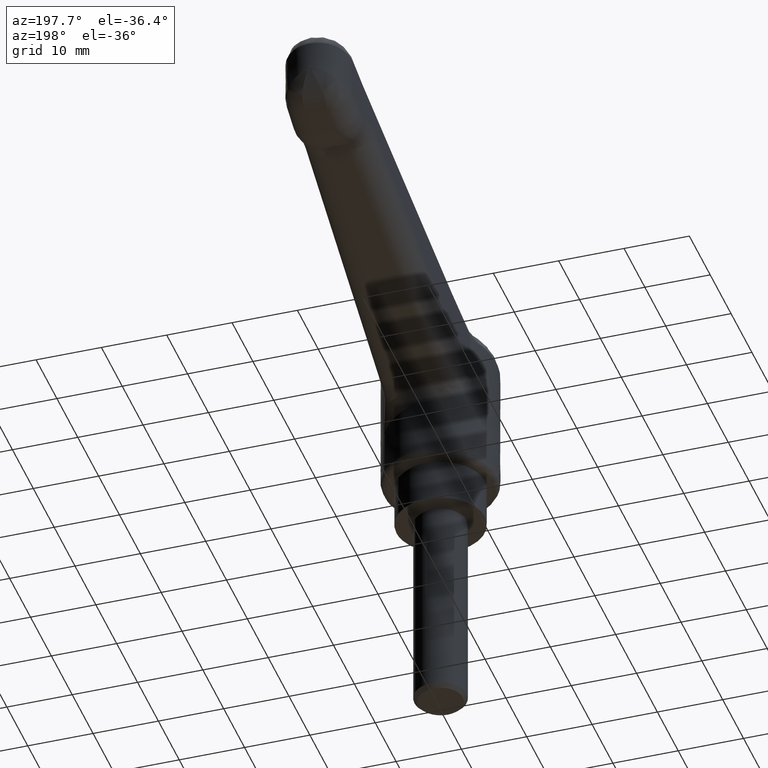
[diagram: clean part render]
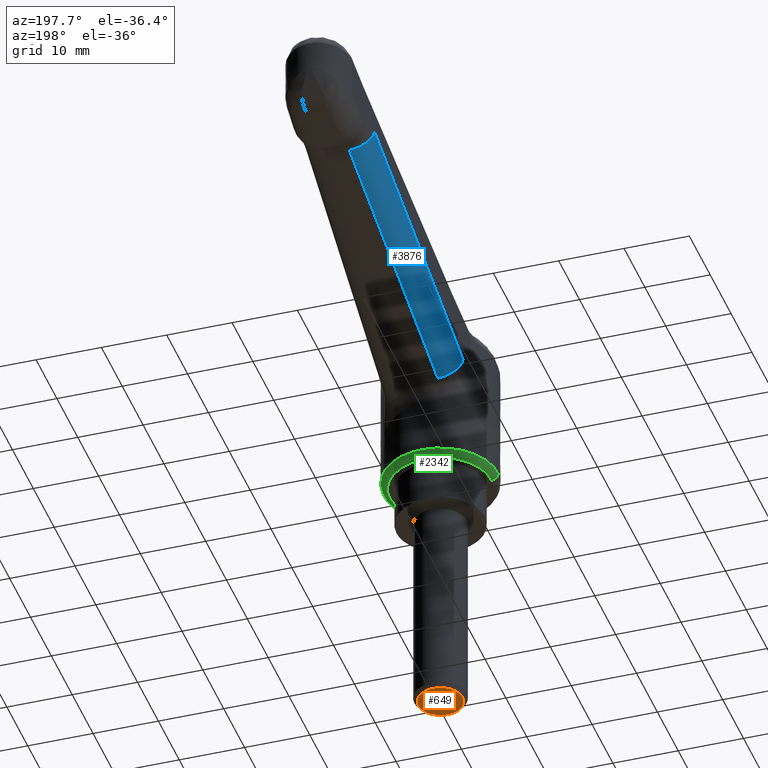
[diagram: same view with three faces highlighted in distinct colors, each labeled with its STEP entity id]
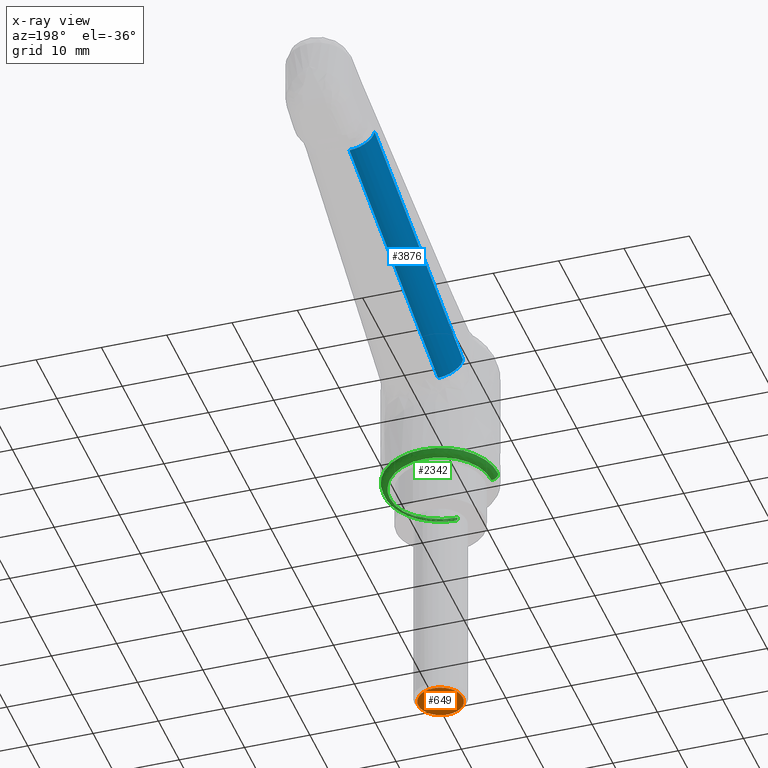
[diagram: x-ray of the same camera — body ghosted, the three highlighted faces saturated]
A machine part, auxiliary view with three faces highlighted in distinct colors.
The next image is the same camera in x-ray (body ghosted, the three faces saturated) — at least one of them is partly hidden behind the body in this view.
Their STEP definitions:

[orange] entity #649 — the highlighted face is a freeform B-spline surface patch.
#66=CARTESIAN_POINT('',(0.000001075447885,3.399999999999830,-32.0));
#67=VERTEX_POINT('',#66);
#68=CARTESIAN_POINT('',(2.383091781248194,2.425051814729273,-31.999999865589508));
#69=VERTEX_POINT('',#68);
#70=CARTESIAN_POINT('',(0.000001075447885,3.399999999999830,-32.0));
#71=CARTESIAN_POINT('',(0.206303826856431,3.400013539183006,-31.999999988364120));
#72=CARTESIAN_POINT('',(0.660166526704728,3.358592559476870,-31.999999962765539));
#73=CARTESIAN_POINT('',(1.309574584859677,3.163938275097377,-31.999999926137779));
#74=CARTESIAN_POINT('',(1.904564422289869,2.840730558385171,-31.999999892579272));
#75=CARTESIAN_POINT('',(2.235959255442568,2.569665688675639,-31.999999873888061));
#76=CARTESIAN_POINT('',(2.383091781248194,2.425051814729273,-31.999999865589508));
#77=B_SPLINE_CURVE_WITH_KNOTS('',3,(#70,#71,#72,#73,#74,#75,#76),.UNSPECIFIED.,.F.,.U.,(4,1,1,1,4),(0.000000022593269,0.618912912627354,1.361596499092005,2.021785552334158,2.640698442399903),.UNSPECIFIED.);
#78=EDGE_CURVE('',#67,#69,#77,.T.);
#80=CARTESIAN_POINT('',(-3.400000000000000,0.0,-32.0));
#81=VERTEX_POINT('',#80);
#82=CARTESIAN_POINT('',(-3.400000000000000,0.0,-32.0));
#83=CARTESIAN_POINT('',(-3.400046823733863,0.250346116770908,-32.0));
#84=CARTESIAN_POINT('',(-3.345993373157045,0.737111803730182,-32.000000000000142));
#85=CARTESIAN_POINT('',(-3.131545144628676,1.373159363141625,-31.999999999999829));
#86=CARTESIAN_POINT('',(-2.798219377999171,1.970080177058137,-32.000000000000021));
#87=CARTESIAN_POINT('',(-2.371431778203731,2.471041884002328,-32.000000000000021));
#88=CARTESIAN_POINT('',(-1.740827639827387,2.957055804232345,-32.000000000000163));
#89=CARTESIAN_POINT('',(-0.959625070817384,3.309088472490944,-31.999999999999709));
#90=CARTESIAN_POINT('',(-0.319888569717992,3.400096934344931,-32.000000000000163));
#91=CARTESIAN_POINT('',(0.000001075447885,3.399999999999830,-32.0));
#92=B_SPLINE_CURVE_WITH_KNOTS('',3,(#82,#83,#84,#85,#86,#87,#88,#89,#90,#91),.UNSPECIFIED.,.F.,.U.,(4,1,1,1,1,1,1,4),(0.000000091855163,0.751031887031957,1.460361161981702,2.002785758395207,2.795535657027919,3.421399764828268,4.381086326206093,5.340741627925443),.UNSPECIFIED.);
#93=EDGE_CURVE('',#81,#67,#92,.T.);
#95=CARTESIAN_POINT('',(-0.000001075447866,-3.399999999999830,-32.0));
#96=VERTEX_POINT('',#95);
#97=CARTESIAN_POINT('',(-0.000001075447866,-3.399999999999830,-32.0));
#98=CARTESIAN_POINT('',(-0.403389914366705,-3.400308546093153,-32.000000000000050));
#99=CARTESIAN_POINT('',(-0.959492652385073,-3.299857364652929,-31.999999999999890));
#100=CARTESIAN_POINT('',(-1.645752914098247,-2.990446706902696,-32.000000000000163));
#101=CARTESIAN_POINT('',(-2.184058882485862,-2.640349191780342,-32.000000000000263));
#102=CARTESIAN_POINT('',(-2.686691935654293,-2.131544496714763,-31.999999999998462));
#103=CARTESIAN_POINT('',(-3.053171207885497,-1.536591387172654,-32.000000000002252));
#104=CARTESIAN_POINT('',(-3.323592752136132,-0.848317448150342,-31.999999999997421));
#105=CARTESIAN_POINT('',(-3.400133827268607,-0.333812448389348,-32.000000000001577));
#106=CARTESIAN_POINT('',(-3.400000000000000,0.0,-32.0));
#107=B_SPLINE_CURVE_WITH_KNOTS('',3,(#97,#98,#99,#100,#101,#102,#103,#104,#105,#106),.UNSPECIFIED.,.F.,.U.,(4,1,1,1,1,1,1,4),(0.000000092229667,1.210011025555104,1.668984857592990,2.253145351925685,3.129337563657504,3.796930821526474,4.339353491044482,5.340740415637450),.UNSPECIFIED.);
#108=EDGE_CURVE('',#96,#81,#107,.T.);
#110=CARTESIAN_POINT('',(2.425051239519137,-2.383091215990767,-32.000000134410527));
#111=VERTEX_POINT('',#110);
#112=CARTESIAN_POINT('',(2.425051239519137,-2.383091215990767,-32.000000134410527));
#113=CARTESIAN_POINT('',(2.257509441591803,-2.553625522750459,-32.000000125124330));
#114=CARTESIAN_POINT('',(1.864437061579501,-2.877127182307133,-32.000000103338117));
#115=CARTESIAN_POINT('',(1.054531645532145,-3.283824866944554,-32.000000058448279));
#116=CARTESIAN_POINT('',(0.393799933904376,-3.400306882563987,-32.000000021826807));
#117=CARTESIAN_POINT('',(-0.000001075447866,-3.399999999999830,-32.0));
#118=B_SPLINE_CURVE_WITH_KNOTS('',3,(#112,#113,#114,#115,#116,#117),.UNSPECIFIED.,.F.,.U.,(4,1,1,4),(0.000000025236118,0.717199688999989,1.518761499625413,2.700042588229450),.UNSPECIFIED.);
#119=EDGE_CURVE('',#111,#96,#118,.T.);
#221=CARTESIAN_POINT('',(3.400000000000000,0.0,-32.0));
#222=VERTEX_POINT('',#221);
#223=CARTESIAN_POINT('',(2.383091781248194,2.425051814729273,-31.999999865589508));
#224=CARTESIAN_POINT('',(2.623950531510048,2.188595266363423,-31.999999878695391));
#225=CARTESIAN_POINT('',(2.931539559237469,1.779479608940712,-31.999999901370970));
#226=CARTESIAN_POINT('',(3.301131312220472,0.956089441028039,-31.999999947007851));
#227=CARTESIAN_POINT('',(3.400319805573218,0.393814750879882,-31.999999978172610));
#228=CARTESIAN_POINT('',(3.400000000000000,0.0,-32.0));
#229=B_SPLINE_CURVE_WITH_KNOTS('',3,(#223,#224,#225,#226,#227,#228),.UNSPECIFIED.,.F.,.U.,(4,1,1,4),(0.000000025225811,1.012516110250977,1.518761074837841,2.700041832979168),.UNSPECIFIED.);
#230=EDGE_CURVE('',#69,#222,#229,.T.);
#255=CARTESIAN_POINT('',(3.400000000000000,0.0,-32.0));
#256=CARTESIAN_POINT('',(3.400037289903009,-0.233814047627751,-32.000000013187510));
#257=CARTESIAN_POINT('',(3.355830822953966,-0.660158141330641,-32.000000037234138));
#258=CARTESIAN_POINT('',(3.153742569910166,-1.334509752092476,-32.000000075268638));
#259=CARTESIAN_POINT('',(2.842946694442174,-1.906728825953407,-32.000000107543038));
#260=CARTESIAN_POINT('',(2.550367712191789,-2.255566001391975,-32.000000127217668));
#261=CARTESIAN_POINT('',(2.425051239519137,-2.383091215990767,-32.000000134410527));
#262=B_SPLINE_CURVE_WITH_KNOTS('',3,(#255,#256,#257,#258,#259,#260,#261),.UNSPECIFIED.,.F.,.U.,(4,1,1,1,4),(0.000000022583575,0.701436544938916,1.279102335144040,2.104308352629024,2.640699204687282),.UNSPECIFIED.);
#263=EDGE_CURVE('',#222,#111,#262,.T.);
#636=CARTESIAN_POINT('',(-3.739660114487350,-3.739660114487164,-32.0));
#637=CARTESIAN_POINT('',(3.739660175284088,-3.739660114487164,-32.0));
#638=CARTESIAN_POINT('',(-3.739660114487350,3.739660175283901,-32.0));
#639=CARTESIAN_POINT('',(3.739660175284088,3.739660175283901,-32.0));
#640=B_SPLINE_SURFACE_WITH_KNOTS('',1,1,((#636,#638),(#637,#639)),.UNSPECIFIED.,.F.,.F.,.U.,(2,2),(2,2),(0.0,7.479320289771438),(0.0,7.479320289771064),.UNSPECIFIED.);
#641=ORIENTED_EDGE('',*,*,#263,.T.);
#642=ORIENTED_EDGE('',*,*,#119,.T.);
#643=ORIENTED_EDGE('',*,*,#108,.T.);
#644=ORIENTED_EDGE('',*,*,#93,.T.);
#645=ORIENTED_EDGE('',*,*,#78,.T.);
#646=ORIENTED_EDGE('',*,*,#230,.T.);
#647=EDGE_LOOP('',(#641,#642,#643,#644,#645,#646));
#648=FACE_OUTER_BOUND('',#647,.T.);
#649=ADVANCED_FACE('',(#648),#640,.F.);

[blue] entity #3876 — the highlighted face is a freeform B-spline surface patch.
#3795=CARTESIAN_POINT('',(9.262958616653201,6.402179053604970,21.973302108330049));
#3796=VERTEX_POINT('',#3795);
#3797=CARTESIAN_POINT('',(10.359522173690999,2.903622422313820,18.684377667119900));
#3798=VERTEX_POINT('',#3797);
#3799=CARTESIAN_POINT('',(9.262958616653201,6.402179053604970,21.973302108330049));
#3800=CARTESIAN_POINT('',(9.355346612989955,6.399584853430302,21.719263238965869));
#3801=CARTESIAN_POINT('',(9.504592548239023,6.343848795697433,21.304813906165389));
#3802=CARTESIAN_POINT('',(9.721919332280047,6.131973604940946,20.690989891108369));
#3803=CARTESIAN_POINT('',(9.920742144680839,5.808080784146135,20.119163679415621));
#3804=CARTESIAN_POINT('',(10.091000705621409,5.350193073114724,19.615241031614421));
#3805=CARTESIAN_POINT('',(10.208198560858371,4.867257432246587,19.255124560028410));
#3806=CARTESIAN_POINT('',(10.285969740020461,4.409105756294705,19.005288247986350));
#3807=CARTESIAN_POINT('',(10.354967709921080,3.771122701298901,18.765362177045741));
#3808=CARTESIAN_POINT('',(10.368228761378500,3.244978476208861,18.687399501600851));
#3809=CARTESIAN_POINT('',(10.359522173690999,2.903622422313820,18.684377667119900));
#3810=B_SPLINE_CURVE_WITH_KNOTS('',3,(#3799,#3800,#3801,#3802,#3803,#3804,#3805,#3806,#3807,#3808,#3809),.UNSPECIFIED.,.F.,.U.,(4,1,1,1,1,1,1,1,4),(0.000000091887160,0.810976232770241,1.323177470309531,2.048798498082200,2.859763227086600,3.414647619242432,3.884166311991335,4.439051220912606,5.463445318235242),.UNSPECIFIED.);
#3811=EDGE_CURVE('',#3796,#3798,#3810,.T.);
#3832=CARTESIAN_POINT('',(8.246319324658852,6.429116084484139,21.737356402377628));
#3833=CARTESIAN_POINT('',(49.158520331568887,5.253794208285529,36.628169396621892));
#3834=CARTESIAN_POINT('',(9.566401671407956,6.529952389128280,18.118416373922493));
#3835=CARTESIAN_POINT('',(50.478602678318019,5.354630512929671,33.009229368166757));
#3836=CARTESIAN_POINT('',(9.376880845697839,2.687254104912545,18.335819329733521));
#3837=CARTESIAN_POINT('',(50.289081852607907,1.511932228713937,33.226632323977782));
#3845=(BOUNDED_SURFACE()B_SPLINE_SURFACE(1,2,((#3832,#3834,#3836),(#3833,#3835,#3837)),.UNSPECIFIED.,.F.,.F.,.U.)B_SPLINE_SURFACE_WITH_KNOTS((2,2),(3,3),(0.0,43.553712635917030),(0.0,6.196964391042118),.UNSPECIFIED.)GEOMETRIC_REPRESENTATION_ITEM()RATIONAL_B_SPLINE_SURFACE(((1.0,0.671051942573897,0.996179641709109),(1.0,0.671051942573897,0.996179641709109)))REPRESENTATION_ITEM('')SURFACE());
#3846=CARTESIAN_POINT('',(48.203780514961402,5.283490771678870,36.146592287265499));
#3847=VERTEX_POINT('',#3846);
#3848=CARTESIAN_POINT('',(49.300344071999113,1.784934140387715,32.857667846055499));
#3849=VERTEX_POINT('',#3848);
#3850=CARTESIAN_POINT('',(48.203780514961402,5.283490771678870,36.146592287265499));
#3851=CARTESIAN_POINT('',(48.281578578605732,5.281274652514453,35.932668798177140));
#3852=CARTESIAN_POINT('',(48.450359076743659,5.227662449799922,35.464716291939837));
#3853=CARTESIAN_POINT('',(48.695228196919523,4.983901374195933,34.772703545980868));
#3854=CARTESIAN_POINT('',(48.937980228365383,4.525531138743885,34.069568500596759));
#3855=CARTESIAN_POINT('',(49.113243033544002,3.943778955682896,33.542120255508081));
#3856=CARTESIAN_POINT('',(49.233420381849193,3.268961764501138,33.158672606290942));
#3857=CARTESIAN_POINT('',(49.299589595683599,2.581373142757413,32.922603150097707));
#3858=CARTESIAN_POINT('',(49.307214443761623,2.055163339735760,32.860120650953057));
#3859=CARTESIAN_POINT('',(49.300344071999113,1.784934140387715,32.857667846055499));
#3860=B_SPLINE_CURVE_WITH_KNOTS('',3,(#3850,#3851,#3852,#3853,#3854,#3855,#3856,#3857,#3858,#3859),.UNSPECIFIED.,.F.,.U.,(4,1,1,1,1,1,1,4),(0.000000091885286,0.682927301456331,1.493912572717990,2.304911344371337,3.286590424067347,3.884166311990745,4.652467412871816,5.463445318235228),.UNSPECIFIED.);
#3861=EDGE_CURVE('',#3847,#3849,#3860,.T.);
#3862=ORIENTED_EDGE('',*,*,#3861,.T.);
#3863=CARTESIAN_POINT('',(10.359522173690999,2.903622422313820,18.684377667119900));
#3864=CARTESIAN_POINT('',(49.300344071999113,1.784934140387715,32.857667846055499));
#3865=QUASI_UNIFORM_CURVE('',1,(#3863,#3864),.UNSPECIFIED.,.F.,.U.);
#3866=EDGE_CURVE('',#3798,#3849,#3865,.T.);
#3867=ORIENTED_EDGE('',*,*,#3866,.F.);
#3868=ORIENTED_EDGE('',*,*,#3811,.F.);
#3869=CARTESIAN_POINT('',(48.203780514961402,5.283490771678870,36.146592287265499));
#3870=CARTESIAN_POINT('',(9.262958616653201,6.402179053604970,21.973302108330049));
#3871=QUASI_UNIFORM_CURVE('',1,(#3869,#3870),.UNSPECIFIED.,.F.,.U.);
#3872=EDGE_CURVE('',#3847,#3796,#3871,.T.);
#3873=ORIENTED_EDGE('',*,*,#3872,.F.);
#3874=EDGE_LOOP('',(#3862,#3867,#3868,#3873));
#3875=FACE_OUTER_BOUND('',#3874,.T.);
#3876=ADVANCED_FACE('',(#3875),#3845,.T.);

[green] entity #2342 — the highlighted face is a freeform B-spline surface patch.
#2093=CARTESIAN_POINT('',(-6.354455691114207,-6.015263325047886,7.499999999990987));
#2094=VERTEX_POINT('',#2093);
#2100=CARTESIAN_POINT('',(0.109933996298031,-8.749309373685328,7.500000000000000));
#2101=VERTEX_POINT('',#2100);
#2102=CARTESIAN_POINT('',(-6.354455691114207,-6.015263325047886,7.499999999990987));
#2103=CARTESIAN_POINT('',(-5.940775256106184,-6.452393557032376,7.499999999991860));
#2104=CARTESIAN_POINT('',(-5.137462727302058,-7.142183512451950,7.499999999993228));
#2105=CARTESIAN_POINT('',(-3.899827545571847,-7.865785215738073,7.499999999995273));
#2106=CARTESIAN_POINT('',(-2.870205675295900,-8.285664109434878,7.499999999996613));
#2107=CARTESIAN_POINT('',(-1.565206357952180,-8.653036569670702,7.499999999998270));
#2108=CARTESIAN_POINT('',(-0.585906137480290,-8.758237108538777,7.499999999999337));
#2109=CARTESIAN_POINT('',(0.109933996298031,-8.749309373685328,7.500000000000000));
#2110=B_SPLINE_CURVE_WITH_KNOTS('',3,(#2102,#2103,#2104,#2105,#2106,#2107,#2108,#2109),.UNSPECIFIED.,.F.,.U.,(4,1,1,1,1,4),(0.000000014360532,1.805514733418356,3.159660966558195,4.288087376748910,5.134429979583878,7.222058597644534),.UNSPECIFIED.);
#2111=EDGE_CURVE('',#2094,#2101,#2110,.T.);
#2113=CARTESIAN_POINT('',(8.750000000000000,0.0,7.500000000000000));
#2114=VERTEX_POINT('',#2113);
#2115=CARTESIAN_POINT('',(0.109933996298031,-8.749309373685328,7.500000000000000));
#2116=CARTESIAN_POINT('',(0.713502699685498,-8.741816568859047,7.500000000000596));
#2117=CARTESIAN_POINT('',(1.848108169442426,-8.609424497078811,7.500000000001620));
#2118=CARTESIAN_POINT('',(3.273843166694617,-8.151413571225655,7.500000000002527));
#2119=CARTESIAN_POINT('',(4.546968111588072,-7.515918201171089,7.500000000003278));
#2120=CARTESIAN_POINT('',(5.507852220662898,-6.836897463484384,7.500000000003454));
#2121=CARTESIAN_POINT('',(6.491515920816188,-5.911028041647692,7.500000000003581));
#2122=CARTESIAN_POINT('',(7.271942079557135,-4.937269255770262,7.500000000003395));
#2123=CARTESIAN_POINT('',(7.986157861456062,-3.664271465957183,7.500000000002916));
#2124=CARTESIAN_POINT('',(8.577623689320149,-2.059258427616046,7.500000000001799));
#2125=CARTESIAN_POINT('',(8.750281108557328,-0.781174512628224,7.500000000000803));
#2126=CARTESIAN_POINT('',(8.750000000000000,0.0,7.500000000000000));
#2127=B_SPLINE_CURVE_WITH_KNOTS('',3,(#2115,#2116,#2117,#2118,#2119,#2120,#2121,#2122,#2123,#2124,#2125,#2126),.UNSPECIFIED.,.F.,.U.,(4,1,1,1,1,1,1,1,1,4),(0.000000018811168,1.810837017683202,3.408654265399543,4.473865182008096,6.071667991470310,6.923827640652861,8.521629102155725,9.799876811127172,11.291175329991640,13.634615158612659),.UNSPECIFIED.);
#2128=EDGE_CURVE('',#2101,#2114,#2127,.T.);
#2130=CARTESIAN_POINT('',(-0.219888335178215,8.747236656227642,7.499999999974310));
#2131=VERTEX_POINT('',#2130);
#2132=CARTESIAN_POINT('',(8.750000000000000,0.0,7.500000000000000));
#2133=CARTESIAN_POINT('',(8.750139552992700,0.654595048490041,7.500000000001409));
#2134=CARTESIAN_POINT('',(8.643366964557853,1.600024302511590,7.500000000002954));
#2135=CARTESIAN_POINT('',(8.243949959622190,3.019557576892507,7.500000000004024));
#2136=CARTESIAN_POINT('',(7.743884219852498,4.155881933917202,7.500000000004026));
#2137=CARTESIAN_POINT('',(7.028224888032801,5.256149704534440,7.500000000002810));
#2138=CARTESIAN_POINT('',(6.231959340118197,6.181271964205028,7.500000000000936));
#2139=CARTESIAN_POINT('',(5.425283880974514,6.893009811917645,7.499999999998374));
#2140=CARTESIAN_POINT('',(4.509725996341755,7.521219026905407,7.499999999995196));
#2141=CARTESIAN_POINT('',(3.333405698010183,8.142908380144776,7.499999999990746));
#2142=CARTESIAN_POINT('',(1.710402972766057,8.654271824796473,7.499999999983543));
#2143=CARTESIAN_POINT('',(0.416310882426686,8.763332938404670,7.499999999977663));
#2144=CARTESIAN_POINT('',(-0.219888335178215,8.747236656227642,7.499999999974310));
#2145=B_SPLINE_CURVE_WITH_KNOTS('',3,(#2132,#2133,#2134,#2135,#2136,#2137,#2138,#2139,#2140,#2141,#2142,#2143,#2144),.UNSPECIFIED.,.F.,.U.,(4,1,1,1,1,1,1,1,1,1,4),(0.000000052052329,1.963735858215712,2.836514529372355,4.418427647198580,5.673058418835646,6.764017130999041,8.073150404742467,8.891392337703458,10.091462174907260,12.055210623226261,13.964401957908260),.UNSPECIFIED.);
#2146=EDGE_CURVE('',#2114,#2131,#2145,.T.);
#2211=CARTESIAN_POINT('',(-8.747236656228873,-0.219888335129219,7.499999999982748));
#2212=VERTEX_POINT('',#2211);
#2218=CARTESIAN_POINT('',(-8.747236656228873,-0.219888335129219,7.499999999982748));
#2219=CARTESIAN_POINT('',(-8.736345928901706,-0.653928087473862,7.499999999983191));
#2220=CARTESIAN_POINT('',(-8.646428375147830,-1.553695448144906,7.499999999984209));
#2221=CARTESIAN_POINT('',(-8.250627340244799,-3.077929208720498,7.499999999986126));
#2222=CARTESIAN_POINT('',(-7.506703321630031,-4.622601768478766,7.499999999988467));
#2223=CARTESIAN_POINT('',(-6.744808066599187,-5.602971352257833,7.499999999990120));
#2224=CARTESIAN_POINT('',(-6.354455691114207,-6.015263325047886,7.499999999990987));
#2225=B_SPLINE_CURVE_WITH_KNOTS('',3,(#2218,#2219,#2220,#2221,#2222,#2223,#2224),.UNSPECIFIED.,.F.,.U.,(4,1,1,1,4),(6.557025E-009,1.302533802497732,2.705274645835866,4.709166462384086,6.412482208577240),.UNSPECIFIED.);
#2226=EDGE_CURVE('',#2212,#2094,#2225,.T.);
#2232=CARTESIAN_POINT('',(-0.219827176199926,8.744803732137127,7.569724188743202));
#2233=CARTESIAN_POINT('',(8.524976555937203,8.964630908337052,7.569724188743201));
#2234=CARTESIAN_POINT('',(8.744803732137127,0.219827176199926,7.569724188743202));
#2235=CARTESIAN_POINT('',(8.964630908337057,-8.524976555937199,7.569724188743201));
#2236=CARTESIAN_POINT('',(0.219827176199929,-8.744803732137127,7.569724188743202));
#2237=CARTESIAN_POINT('',(-8.524976555937199,-8.964630908337057,7.569724188743201));
#2238=CARTESIAN_POINT('',(-8.744803732137127,-0.219827176199929,7.569724188743202));
#2239=CARTESIAN_POINT('',(-0.221841929892496,8.824951354986556,6.422664216261232));
#2240=CARTESIAN_POINT('',(8.603109425094061,9.046793284879055,6.422664216261234));
#2241=CARTESIAN_POINT('',(8.824951354986556,0.221841929892497,6.422664216261232));
#2242=CARTESIAN_POINT('',(9.046793284879055,-8.603109425094061,6.422664216261234));
#2243=CARTESIAN_POINT('',(0.221841929892499,-8.824951354986556,6.422664216261232));
#2244=CARTESIAN_POINT('',(-8.603109425094058,-9.046793284879055,6.422664216261234));
#2245=CARTESIAN_POINT('',(-8.824951354986556,-0.221841929892500,6.422664216261232));
#2246=CARTESIAN_POINT('',(-0.193015450934672,7.678223706783986,6.502407655551716));
#2247=CARTESIAN_POINT('',(7.485208255849313,7.871239157718658,6.502407655551715));
#2248=CARTESIAN_POINT('',(7.678223706783986,0.193015450934672,6.502407655551716));
#2249=CARTESIAN_POINT('',(7.871239157718660,-7.485208255849311,6.502407655551715));
#2250=CARTESIAN_POINT('',(0.193015450934675,-7.678223706783986,6.502407655551716));
#2251=CARTESIAN_POINT('',(-7.485208255849310,-7.871239157718660,6.502407655551715));
#2252=CARTESIAN_POINT('',(-7.678223706783986,-0.193015450934675,6.502407655551716));
#2260=(BOUNDED_SURFACE()B_SPLINE_SURFACE(2,2,((#2232,#2239,#2246),(#2233,#2240,#2247),(#2234,#2241,#2248),(#2235,#2242,#2249),(#2236,#2243,#2250),(#2237,#2244,#2251),(#2238,#2245,#2252)),.UNSPECIFIED.,.F.,.F.,.U.)B_SPLINE_SURFACE_WITH_KNOTS((3,2,2,3),(3,3),(0.0,14.493442409002860,28.986884818005720,43.480327227008580),(0.0,1.822370436461373),.UNSPECIFIED.)GEOMETRIC_REPRESENTATION_ITEM()RATIONAL_B_SPLINE_SURFACE(((0.910892943119429,0.599412915015239,0.915966658337646),(0.644098577014720,0.423848936938071,0.647686235451331),(0.910892943119429,0.599412915015239,0.915966658337646),(0.644098577014720,0.423848936938071,0.647686235451331),(0.910892943119429,0.599412915015239,0.915966658337646),(0.644098577014720,0.423848936938071,0.647686235451331),(0.910892943119429,0.599412915015239,0.915966658337646)))REPRESENTATION_ITEM('')SURFACE());
#2261=ORIENTED_EDGE('',*,*,#2146,.F.);
#2262=ORIENTED_EDGE('',*,*,#2128,.F.);
#2263=ORIENTED_EDGE('',*,*,#2111,.F.);
#2264=ORIENTED_EDGE('',*,*,#2226,.F.);
#2265=CARTESIAN_POINT('',(-7.747552470139488,-0.194758239940481,6.500000000000050));
#2266=VERTEX_POINT('',#2265);
#2267=CARTESIAN_POINT('',(-8.747236656228873,-0.219888335129219,7.499999999982748));
#2268=CARTESIAN_POINT('',(-8.747420102637220,-0.219892946611291,7.360887761262642));
#2269=CARTESIAN_POINT('',(-8.696914648205700,-0.218623338774057,7.123784506843284));
#2270=CARTESIAN_POINT('',(-8.528808380926751,-0.214397477689797,6.858290146235549));
#2271=CARTESIAN_POINT('',(-8.317804301295727,-0.209093249934547,6.662168849784357));
#2272=CARTESIAN_POINT('',(-8.058349545326122,-0.202571067423898,6.531528993554269));
#2273=CARTESIAN_POINT('',(-7.845692572028954,-0.197225289171259,6.499972235305967));
#2274=CARTESIAN_POINT('',(-7.747552470139488,-0.194758239940481,6.500000000000050));
#2275=B_SPLINE_CURVE_WITH_KNOTS('',3,(#2267,#2268,#2269,#2270,#2271,#2272,#2273,#2274),.UNSPECIFIED.,.F.,.U.,(4,1,1,1,1,4),(0.000000166053219,0.417255018316904,0.711794422736940,0.932672427783144,1.276310344604634,1.570835743331263),.UNSPECIFIED.);
#2276=EDGE_CURVE('',#2212,#2266,#2275,.T.);
#2277=ORIENTED_EDGE('',*,*,#2276,.T.);
#2278=CARTESIAN_POINT('',(0.097373588528918,-7.749388258711587,6.500000000000100));
#2279=VERTEX_POINT('',#2278);
#2280=CARTESIAN_POINT('',(0.097373588528918,-7.749388258711587,6.500000000000100));
#2281=CARTESIAN_POINT('',(-0.279974574890711,-7.754136981652586,6.500000000000105));
#2282=CARTESIAN_POINT('',(-1.129808237428060,-7.702705237387351,6.500000000000086));
#2283=CARTESIAN_POINT('',(-2.268850865567742,-7.442210738594850,6.500000000000111));
#2284=CARTESIAN_POINT('',(-3.323442905072267,-7.024620671896692,6.500000000000052));
#2285=CARTESIAN_POINT('',(-4.399417201727202,-6.430179462853838,6.500000000000113));
#2286=CARTESIAN_POINT('',(-5.456082064764739,-5.573352337861956,6.500000000000044));
#2287=CARTESIAN_POINT('',(-6.405692428477594,-4.433640809740988,6.500000000000116));
#2288=CARTESIAN_POINT('',(-7.031310184930833,-3.336248730480252,6.499999999999941));
#2289=CARTESIAN_POINT('',(-7.564172531116014,-1.920256986710640,6.500000000000166));
#2290=CARTESIAN_POINT('',(-7.730423367063407,-0.886445997924916,6.500000000000005));
#2291=CARTESIAN_POINT('',(-7.747552470139488,-0.194758239940481,6.500000000000050));
#2292=B_SPLINE_CURVE_WITH_KNOTS('',3,(#2280,#2281,#2282,#2283,#2284,#2285,#2286,#2287,#2288,#2289,#2290,#2291),.UNSPECIFIED.,.F.,.U.,(4,1,1,1,1,1,1,1,1,4),(0.000000019977447,1.132146347561921,2.547352243679779,3.490823388378715,4.528641215926328,6.226855849271356,7.547706741639429,8.962910990590640,10.000730201266210,12.076343506931860),.UNSPECIFIED.);
#2293=EDGE_CURVE('',#2279,#2266,#2292,.T.);
#2294=ORIENTED_EDGE('',*,*,#2293,.F.);
#2295=CARTESIAN_POINT('',(7.750000000000000,0.0,6.500000000000100));
#2296=VERTEX_POINT('',#2295);
#2297=CARTESIAN_POINT('',(7.750000000000000,0.0,6.500000000000100));
#2298=CARTESIAN_POINT('',(7.750093153494287,-0.566080948329691,6.500000000000127));
#2299=CARTESIAN_POINT('',(7.649616820702970,-1.478043987734905,6.500000000000054));
#2300=CARTESIAN_POINT('',(7.249359988903440,-2.838781467806971,6.500000000000133));
#2301=CARTESIAN_POINT('',(6.699127004001568,-3.976649257837315,6.500000000000106));
#2302=CARTESIAN_POINT('',(5.903258037669418,-5.075181769198402,6.500000000000100));
#2303=CARTESIAN_POINT('',(4.982839128560427,-5.984844034345525,6.500000000000118));
#2304=CARTESIAN_POINT('',(3.843807454773864,-6.779383799346332,6.500000000000104));
#2305=CARTESIAN_POINT('',(2.578012395918727,-7.354529720131626,6.500000000000127));
#2306=CARTESIAN_POINT('',(1.291567641642601,-7.674551188363106,6.500000000000053));
#2307=CARTESIAN_POINT('',(0.474721056851644,-7.744661643592945,6.500000000000187));
#2308=CARTESIAN_POINT('',(0.097373588528918,-7.749388258711587,6.500000000000100));
#2309=B_SPLINE_CURVE_WITH_KNOTS('',3,(#2297,#2298,#2299,#2300,#2301,#2302,#2303,#2304,#2305,#2306,#2307,#2308),.UNSPECIFIED.,.F.,.U.,(4,1,1,1,1,1,1,1,1,4),(0.000000019974841,1.698227168414363,2.736052511685626,4.245602893947744,5.472122941526779,6.792935725129424,8.113802834909208,9.623363392604755,10.944229435711950,12.076369947658250),.UNSPECIFIED.);
#2310=EDGE_CURVE('',#2296,#2279,#2309,.T.);
#2311=ORIENTED_EDGE('',*,*,#2310,.F.);
#2312=CARTESIAN_POINT('',(-0.194758239897961,7.747552469713583,6.500000000000050));
#2313=VERTEX_POINT('',#2312);
#2314=CARTESIAN_POINT('',(-0.194758239897961,7.747552469713583,6.500000000000050));
#2315=CARTESIAN_POINT('',(0.481452285460342,7.764765282122526,6.500000000000062));
#2316=CARTESIAN_POINT('',(1.547415198130865,7.651197418360871,6.500000000000060));
#2317=CARTESIAN_POINT('',(3.084725819485097,7.156235589624765,6.500000000000097));
#2318=CARTESIAN_POINT('',(4.255020884495236,6.528539614724288,6.500000000000068));
#2319=CARTESIAN_POINT('',(5.442041028131338,5.582151099012824,6.500000000000126));
#2320=CARTESIAN_POINT('',(6.330113414235585,4.550426047704727,6.500000000000082));
#2321=CARTESIAN_POINT('',(7.040711065852563,3.319618961632811,6.500000000000133));
#2322=CARTESIAN_POINT('',(7.589834627767057,1.868040578292773,6.500000000000093));
#2323=CARTESIAN_POINT('',(7.750233042495068,0.708633564323195,6.500000000000092));
#2324=CARTESIAN_POINT('',(7.750000000000000,0.0,6.500000000000100));
#2325=B_SPLINE_CURVE_WITH_KNOTS('',3,(#2314,#2315,#2316,#2317,#2318,#2319,#2320,#2321,#2322,#2323,#2324),.UNSPECIFIED.,.F.,.U.,(4,1,1,1,1,1,1,1,4),(0.000000015288281,2.029211825589931,3.188762961812712,4.831475944866146,5.991011686770746,7.730315272843819,8.889877723426157,10.242692522308010,12.368530388042579),.UNSPECIFIED.);
#2326=EDGE_CURVE('',#2313,#2296,#2325,.T.);
#2327=ORIENTED_EDGE('',*,*,#2326,.F.);
#2328=CARTESIAN_POINT('',(-0.219888335178215,8.747236656227642,7.499999999974310));
#2329=CARTESIAN_POINT('',(-0.219890030869703,8.747304111649717,7.393634893254843));
#2330=CARTESIAN_POINT('',(-0.219225667043741,8.720875481086418,7.230052513368387));
#2331=CARTESIAN_POINT('',(-0.216867583090501,8.627070057505380,7.011186737051401));
#2332=CARTESIAN_POINT('',(-0.213241502048217,8.482823255679975,6.800699060036839));
#2333=CARTESIAN_POINT('',(-0.208018277356841,8.275041507525787,6.634342154749758));
#2334=CARTESIAN_POINT('',(-0.201336474858516,8.009237011835079,6.524312187462297));
#2335=CARTESIAN_POINT('',(-0.197225481439506,7.845700221670062,6.499953482783746));
#2336=CARTESIAN_POINT('',(-0.194758239897961,7.747552469713583,6.500000000000050));
#2337=B_SPLINE_CURVE_WITH_KNOTS('',3,(#2328,#2329,#2330,#2331,#2332,#2333,#2334,#2335,#2336),.UNSPECIFIED.,.F.,.U.,(4,1,1,1,1,1,4),(0.000000166053562,0.319074464804111,0.490892865630589,0.711794422797656,1.079943353758701,1.276310344712680,1.570835743463601),.UNSPECIFIED.);
#2338=EDGE_CURVE('',#2131,#2313,#2337,.T.);
#2339=ORIENTED_EDGE('',*,*,#2338,.F.);
#2340=EDGE_LOOP('',(#2261,#2262,#2263,#2264,#2277,#2294,#2311,#2327,#2339));
#2341=FACE_OUTER_BOUND('',#2340,.T.);
#2342=ADVANCED_FACE('',(#2341),#2260,.T.);